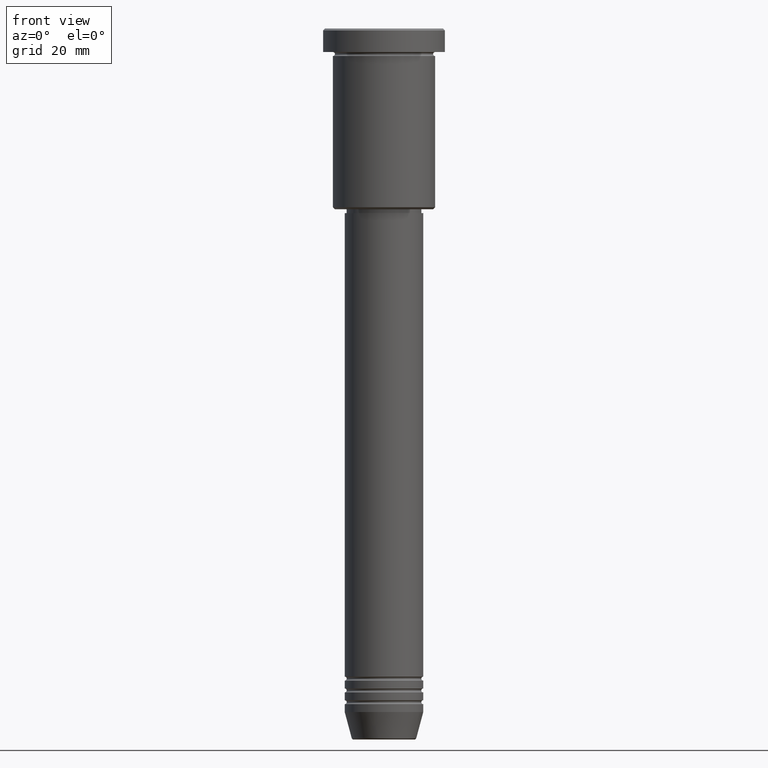
[diagram: clean part render]
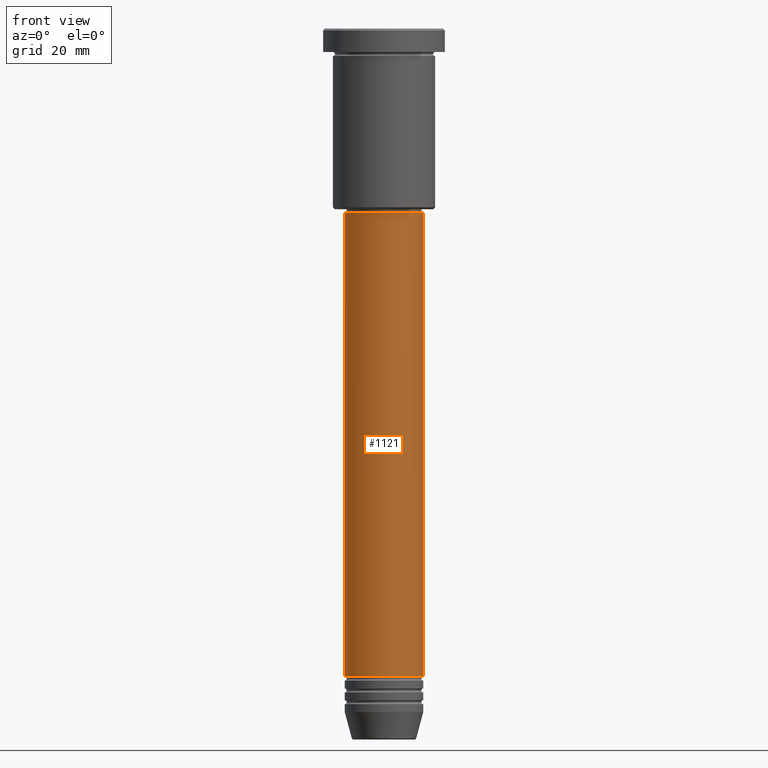
[diagram: same view with one face highlighted and labeled with its STEP entity id]
A machine part, front view. The second image highlights one B-rep face of the part: STEP entity #1121.
In plain terms, the highlighted cylindrical surface (partial cylindrical patch) has radius 10 mm, axis along (-0, -0, 1).
Its self-contained STEP definition (entity closure, byte-faithful):
#3 = DIRECTION ( 'NONE',  ( -0.000000000000000000, -0.000000000000000000, 1.000000000000000000 ) ) ;
#14 = LINE ( 'NONE', #925, #354 ) ;
#71 = CARTESIAN_POINT ( 'NONE',  ( 0.000000000000000000, 0.000000000000000000, -164.9999999999999716 ) ) ;
#171 = ORIENTED_EDGE ( 'NONE', *, *, #1129, .F. ) ;
#228 = CIRCLE ( 'NONE', #894, 10.00000000000000000 ) ;
#251 = DIRECTION ( 'NONE',  ( -0.000000000000000000, -0.000000000000000000, 1.000000000000000000 ) ) ;
#254 = EDGE_CURVE ( 'NONE', #809, #360, #14, .T. ) ;
#276 = DIRECTION ( 'NONE',  ( 1.000000000000000000, 0.000000000000000000, 0.000000000000000000 ) ) ;
#279 = DIRECTION ( 'NONE',  ( 1.000000000000000000, 0.000000000000000000, 0.000000000000000000 ) ) ;
#287 = AXIS2_PLACEMENT_3D ( 'NONE', #1119, #371, #279 ) ;
#354 = VECTOR ( 'NONE', #1183, 1000.000000000000000 ) ;
#360 = VERTEX_POINT ( 'NONE', #1084 ) ;
#371 = DIRECTION ( 'NONE',  ( -0.000000000000000000, -0.000000000000000000, 1.000000000000000000 ) ) ;
#392 = FACE_OUTER_BOUND ( 'NONE', #1086, .T. ) ;
#409 = CIRCLE ( 'NONE', #1044, 10.00000000000000000 ) ;
#443 = CARTESIAN_POINT ( 'NONE',  ( -10.00000000000000000, 1.224646799147353256E-15, 0.000000000000000000 ) ) ;
#453 = VECTOR ( 'NONE', #3, 1000.000000000000000 ) ;
#507 = LINE ( 'NONE', #443, #453 ) ;
#538 = CARTESIAN_POINT ( 'NONE',  ( 0.000000000000000000, 0.000000000000000000, -47.00000000000000711 ) ) ;
#541 = DIRECTION ( 'NONE',  ( 1.000000000000000000, 0.000000000000000000, 0.000000000000000000 ) ) ;
#593 = ORIENTED_EDGE ( 'NONE', *, *, #1152, .F. ) ;
#705 = VERTEX_POINT ( 'NONE', #1181 ) ;
#758 = CARTESIAN_POINT ( 'NONE',  ( 10.00000000000000000, 0.000000000000000000, -164.9999999999999716 ) ) ;
#809 = VERTEX_POINT ( 'NONE', #758 ) ;
#894 = AXIS2_PLACEMENT_3D ( 'NONE', #538, #1162, #276 ) ;
#925 = CARTESIAN_POINT ( 'NONE',  ( 10.00000000000000000, 0.000000000000000000, 0.000000000000000000 ) ) ;
#948 = CYLINDRICAL_SURFACE ( 'NONE', #287, 10.00000000000000000 ) ;
#957 = VERTEX_POINT ( 'NONE', #1146 ) ;
#1036 = ORIENTED_EDGE ( 'NONE', *, *, #254, .T. ) ;
#1044 = AXIS2_PLACEMENT_3D ( 'NONE', #71, #251, #541 ) ;
#1048 = EDGE_CURVE ( 'NONE', #957, #809, #409, .T. ) ;
#1079 = ORIENTED_EDGE ( 'NONE', *, *, #1048, .T. ) ;
#1084 = CARTESIAN_POINT ( 'NONE',  ( 10.00000000000000000, 0.000000000000000000, -47.00000000000000711 ) ) ;
#1086 = EDGE_LOOP ( 'NONE', ( #593, #1079, #1036, #171 ) ) ;
#1119 = CARTESIAN_POINT ( 'NONE',  ( 0.000000000000000000, 0.000000000000000000, 0.000000000000000000 ) ) ;
#1121 = ADVANCED_FACE ( 'NONE', ( #392 ), #948, .T. ) ;
#1129 = EDGE_CURVE ( 'NONE', #705, #360, #228, .T. ) ;
#1146 = CARTESIAN_POINT ( 'NONE',  ( -10.00000000000000000, 1.224646799147353256E-15, -164.9999999999999716 ) ) ;
#1152 = EDGE_CURVE ( 'NONE', #957, #705, #507, .T. ) ;
#1162 = DIRECTION ( 'NONE',  ( -0.000000000000000000, -0.000000000000000000, 1.000000000000000000 ) ) ;
#1181 = CARTESIAN_POINT ( 'NONE',  ( -10.00000000000000000, 1.224646799147353256E-15, -47.00000000000000711 ) ) ;
#1183 = DIRECTION ( 'NONE',  ( -0.000000000000000000, -0.000000000000000000, 1.000000000000000000 ) ) ;